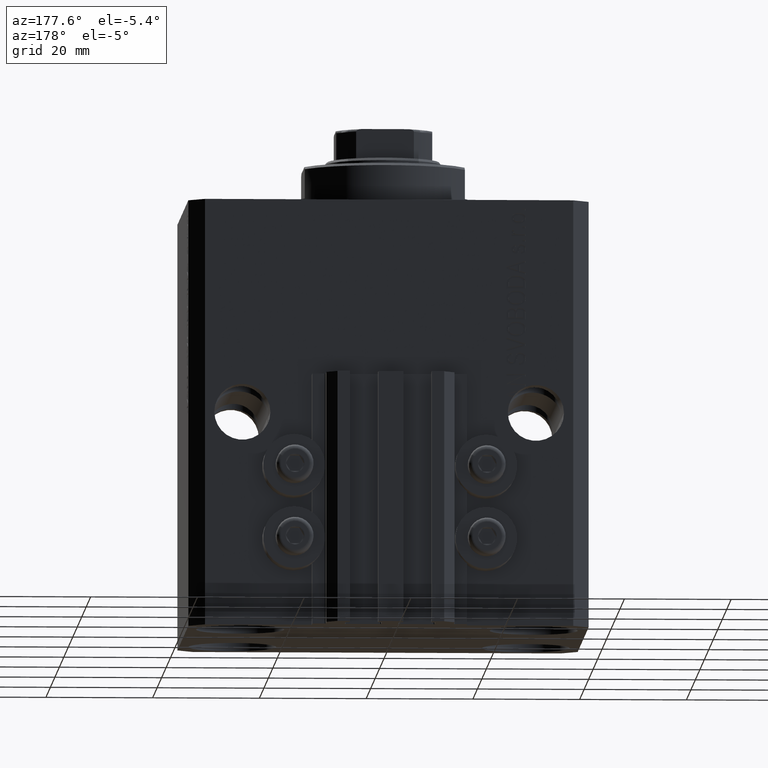
[diagram: clean part render]
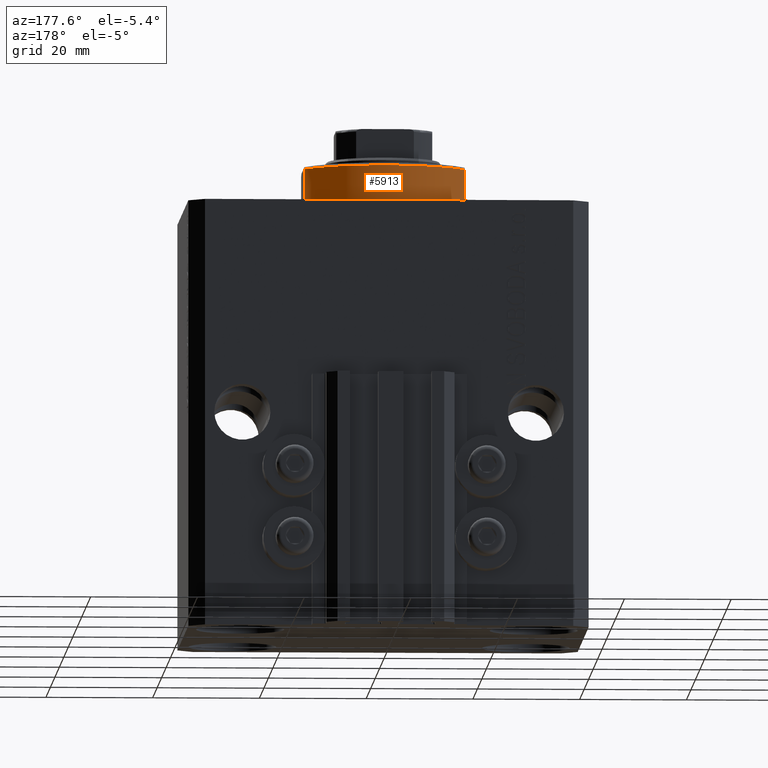
[diagram: same view with one face highlighted and labeled with its STEP entity id]
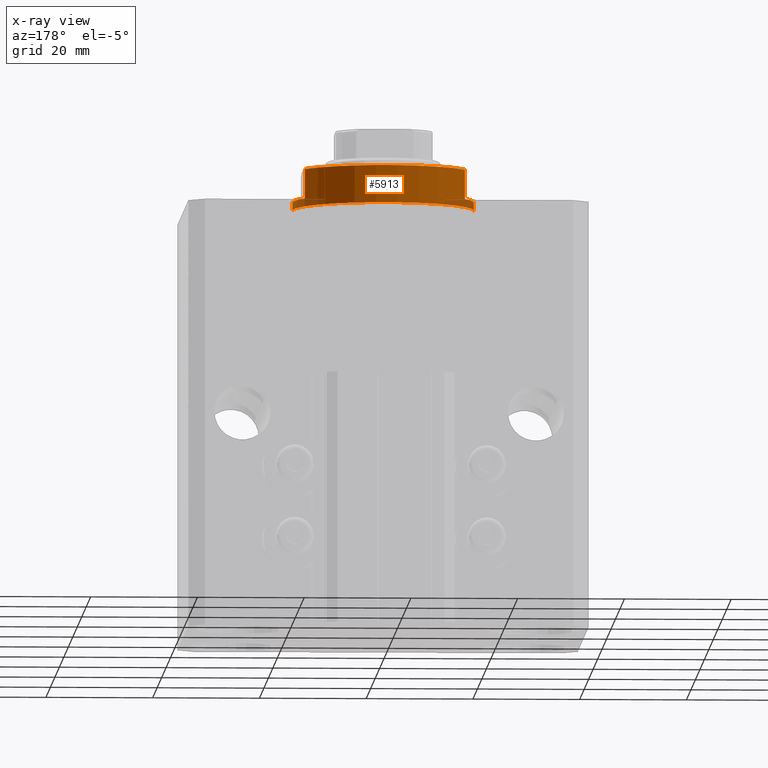
[diagram: x-ray of the same camera — body ghosted, the highlighted face saturated]
A machine part, auxiliary view. The second image highlights one B-rep face of the part: STEP entity #5913.
The next image is the same camera in x-ray: the body ghosted, the highlighted face saturated — about 7% of this face is hidden behind the body in this view.
In plain terms, the highlighted cylindrical surface (partial cylindrical patch) has radius 17 mm, axis along (0, 0, -1).
Its self-contained STEP definition (entity closure, byte-faithful):
#705 = CARTESIAN_POINT ( 'NONE',  ( -15.00000000000000000, 8.000000000000001776, -7.500000000000007105 ) ) ;
#895 = DIRECTION ( 'NONE',  ( -0.000000000000000000, -0.000000000000000000, 1.000000000000000000 ) ) ;
#932 = CARTESIAN_POINT ( 'NONE',  ( 15.00000000000000000, 8.000000000000001776, -8.000000000000000000 ) ) ;
#2342 = EDGE_CURVE ( 'NONE', #12880, #16835, #7983, .T. ) ;
#2753 = ORIENTED_EDGE ( 'NONE', *, *, #11145, .T. ) ;
#2803 = VERTEX_POINT ( 'NONE', #38158 ) ;
#2832 = EDGE_CURVE ( 'NONE', #6791, #36693, #37235, .T. ) ;
#2853 = DIRECTION ( 'NONE',  ( -1.000000000000000000, 0.000000000000000000, 0.000000000000000000 ) ) ;
#3062 = AXIS2_PLACEMENT_3D ( 'NONE', #14759, #24940, #35844 ) ;
#3878 = CIRCLE ( 'NONE', #32610, 17.00000000000000000 ) ;
#4633 = EDGE_CURVE ( 'NONE', #36693, #2803, #38399, .T. ) ;
#5913 = ADVANCED_FACE ( 'NONE', ( #8008 ), #22457, .T. ) ;
#6397 = VECTOR ( 'NONE', #30335, 1000.000000000000000 ) ;
#6791 = VERTEX_POINT ( 'NONE', #35714 ) ;
#6819 = DIRECTION ( 'NONE',  ( 0.000000000000000000, 0.000000000000000000, -1.000000000000000000 ) ) ;
#7864 = CARTESIAN_POINT ( 'NONE',  ( -17.00000000000000000, 2.081899558550500280E-15, -2.000000000000000000 ) ) ;
#7983 = LINE ( 'NONE', #12644, #41757 ) ;
#8008 = FACE_OUTER_BOUND ( 'NONE', #9208, .T. ) ;
#8933 = ORIENTED_EDGE ( 'NONE', *, *, #21727, .T. ) ;
#9208 = EDGE_LOOP ( 'NONE', ( #37788, #2753, #8933, #19450, #39006, #33934, #35318, #43800 ) ) ;
#11145 = EDGE_CURVE ( 'NONE', #23085, #28384, #15653, .T. ) ;
#11466 = EDGE_CURVE ( 'NONE', #6791, #19038, #33847, .T. ) ;
#11620 = AXIS2_PLACEMENT_3D ( 'NONE', #39259, #6819, #21262 ) ;
#11961 = CARTESIAN_POINT ( 'NONE',  ( -17.00000000000000000, 2.081899558550500280E-15, -0.5000000000000004441 ) ) ;
#12644 = CARTESIAN_POINT ( 'NONE',  ( 17.00000000000000000, 0.000000000000000000, -8.000000000000000000 ) ) ;
#12880 = VERTEX_POINT ( 'NONE', #25170 ) ;
#13057 = DIRECTION ( 'NONE',  ( -0.000000000000000000, -0.000000000000000000, 1.000000000000000000 ) ) ;
#14759 = CARTESIAN_POINT ( 'NONE',  ( 0.000000000000000000, 0.000000000000000000, -2.000000000000000000 ) ) ;
#15653 = LINE ( 'NONE', #25846, #6397 ) ;
#15984 = DIRECTION ( 'NONE',  ( -0.000000000000000000, -0.000000000000000000, -1.000000000000000000 ) ) ;
#16835 = VERTEX_POINT ( 'NONE', #22402 ) ;
#19038 = VERTEX_POINT ( 'NONE', #39182 ) ;
#19450 = ORIENTED_EDGE ( 'NONE', *, *, #2342, .F. ) ;
#21262 = DIRECTION ( 'NONE',  ( -1.000000000000000000, 0.000000000000000000, 0.000000000000000000 ) ) ;
#21727 = EDGE_CURVE ( 'NONE', #28384, #16835, #3878, .T. ) ;
#22402 = CARTESIAN_POINT ( 'NONE',  ( 17.00000000000000000, 0.000000000000000000, -0.5000000000000004441 ) ) ;
#22457 = CYLINDRICAL_SURFACE ( 'NONE', #29010, 17.00000000000000000 ) ;
#23085 = VERTEX_POINT ( 'NONE', #7864 ) ;
#24033 = EDGE_CURVE ( 'NONE', #19038, #12880, #41638, .T. ) ;
#24940 = DIRECTION ( 'NONE',  ( 0.000000000000000000, 0.000000000000000000, -1.000000000000000000 ) ) ;
#25170 = CARTESIAN_POINT ( 'NONE',  ( 17.00000000000000000, 0.000000000000000000, -2.000000000000000000 ) ) ;
#25846 = CARTESIAN_POINT ( 'NONE',  ( -17.00000000000000000, 2.081899558550500280E-15, -8.000000000000000000 ) ) ;
#27496 = VECTOR ( 'NONE', #13057, 1000.000000000000000 ) ;
#27725 = DIRECTION ( 'NONE',  ( 0.000000000000000000, 0.000000000000000000, 1.000000000000000000 ) ) ;
#28244 = CIRCLE ( 'NONE', #11620, 17.00000000000000000 ) ;
#28384 = VERTEX_POINT ( 'NONE', #11961 ) ;
#29010 = AXIS2_PLACEMENT_3D ( 'NONE', #36895, #895, #44215 ) ;
#29760 = DIRECTION ( 'NONE',  ( -0.000000000000000000, -0.000000000000000000, 1.000000000000000000 ) ) ;
#30335 = DIRECTION ( 'NONE',  ( -0.000000000000000000, -0.000000000000000000, 1.000000000000000000 ) ) ;
#30437 = DIRECTION ( 'NONE',  ( 1.000000000000000000, 0.000000000000000000, 0.000000000000000000 ) ) ;
#31479 = EDGE_CURVE ( 'NONE', #23085, #2803, #28244, .T. ) ;
#32115 = VECTOR ( 'NONE', #37633, 1000.000000000000000 ) ;
#32610 = AXIS2_PLACEMENT_3D ( 'NONE', #33996, #15984, #30437 ) ;
#33847 = LINE ( 'NONE', #932, #32115 ) ;
#33934 = ORIENTED_EDGE ( 'NONE', *, *, #11466, .F. ) ;
#33996 = CARTESIAN_POINT ( 'NONE',  ( 0.000000000000000000, 0.000000000000000000, -0.5000000000000004441 ) ) ;
#34975 = AXIS2_PLACEMENT_3D ( 'NONE', #45710, #27725, #2853 ) ;
#35318 = ORIENTED_EDGE ( 'NONE', *, *, #2832, .T. ) ;
#35714 = CARTESIAN_POINT ( 'NONE',  ( 15.00000000000000000, 8.000000000000001776, -7.500000000000007105 ) ) ;
#35844 = DIRECTION ( 'NONE',  ( -1.000000000000000000, 0.000000000000000000, 0.000000000000000000 ) ) ;
#36693 = VERTEX_POINT ( 'NONE', #705 ) ;
#36895 = CARTESIAN_POINT ( 'NONE',  ( 0.000000000000000000, 0.000000000000000000, -8.000000000000000000 ) ) ;
#37235 = CIRCLE ( 'NONE', #34975, 17.00000000000000000 ) ;
#37633 = DIRECTION ( 'NONE',  ( -0.000000000000000000, -0.000000000000000000, 1.000000000000000000 ) ) ;
#37695 = CARTESIAN_POINT ( 'NONE',  ( -15.00000000000000000, 8.000000000000001776, -8.000000000000000000 ) ) ;
#37788 = ORIENTED_EDGE ( 'NONE', *, *, #31479, .F. ) ;
#38158 = CARTESIAN_POINT ( 'NONE',  ( -14.99999999999999645, 8.000000000000003553, -2.000000000000000000 ) ) ;
#38399 = LINE ( 'NONE', #37695, #27496 ) ;
#39006 = ORIENTED_EDGE ( 'NONE', *, *, #24033, .F. ) ;
#39182 = CARTESIAN_POINT ( 'NONE',  ( 14.99999999999999645, 8.000000000000003553, -2.000000000000000000 ) ) ;
#39259 = CARTESIAN_POINT ( 'NONE',  ( 0.000000000000000000, 0.000000000000000000, -2.000000000000000000 ) ) ;
#41638 = CIRCLE ( 'NONE', #3062, 17.00000000000000000 ) ;
#41757 = VECTOR ( 'NONE', #29760, 1000.000000000000000 ) ;
#43800 = ORIENTED_EDGE ( 'NONE', *, *, #4633, .T. ) ;
#44215 = DIRECTION ( 'NONE',  ( 1.000000000000000000, 0.000000000000000000, 0.000000000000000000 ) ) ;
#45710 = CARTESIAN_POINT ( 'NONE',  ( 0.000000000000000000, 0.000000000000000000, -7.500000000000007105 ) ) ;